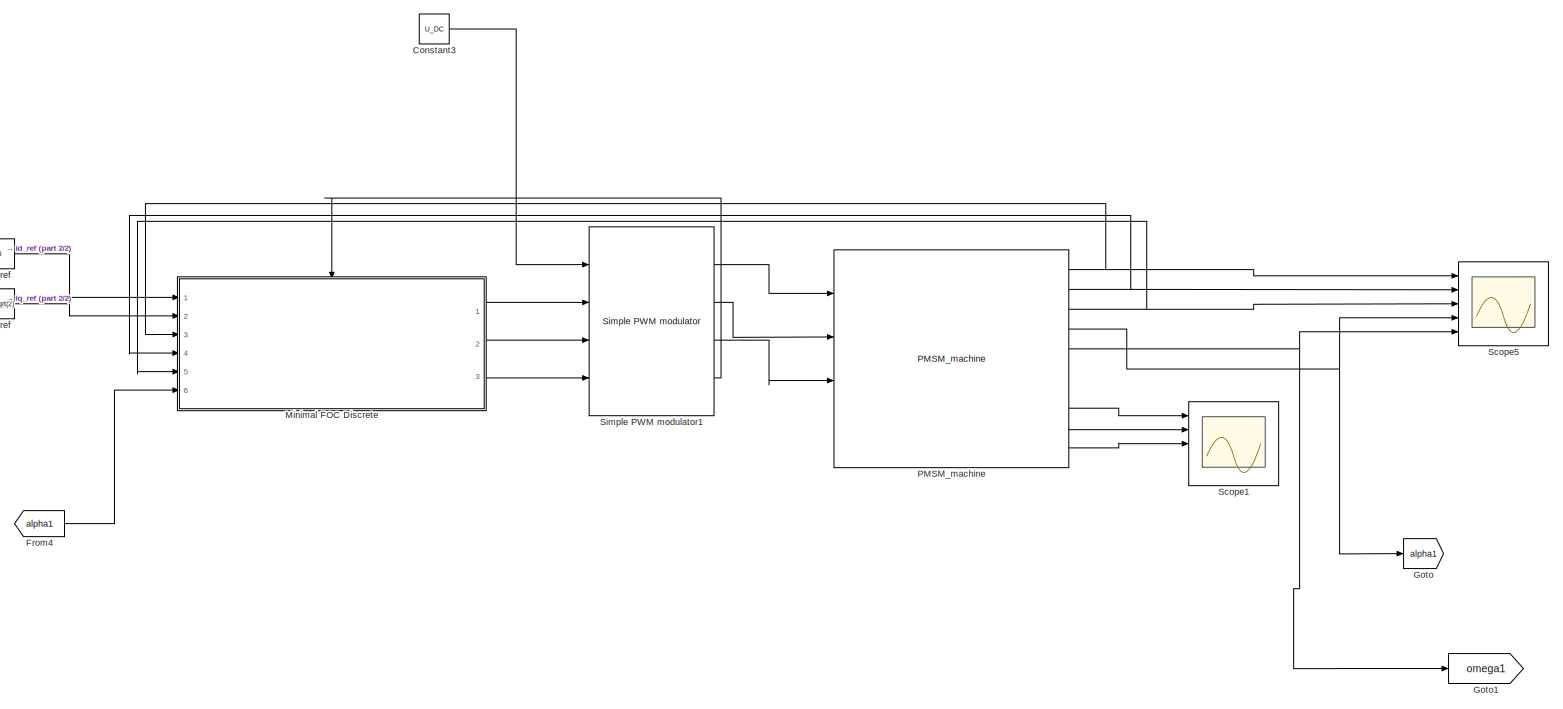
[diagram: root canvas - part 1/2, most of the canvas]
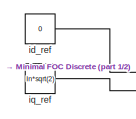
[diagram: root canvas - part 2/2, middle left region]
MODEL slx_70743bb73a25
KIND model
CONFIG AbsTol = auto
CONFIG EnableMultiTasking = off
CONFIG FixedStep = auto
CONFIG MaxStep = 1e-6
CONFIG MinStep = auto
CONFIG RelTol = 1e-3
CONFIG SampleTimeConstraint = Unconstrained
CONFIG Solver = VariableStepAuto
CONFIG SolverName = VariableStepAuto
CONFIG StartTime = 0.0
CONFIG StopTime = 1
BLOCK [Constant] Constant3
  Value = U_DC
BLOCK [From] From4
  GotoTag = alpha1
BLOCK [Goto] Goto
  GotoTag = alpha1
BLOCK [Goto] Goto1
  GotoTag = omega1
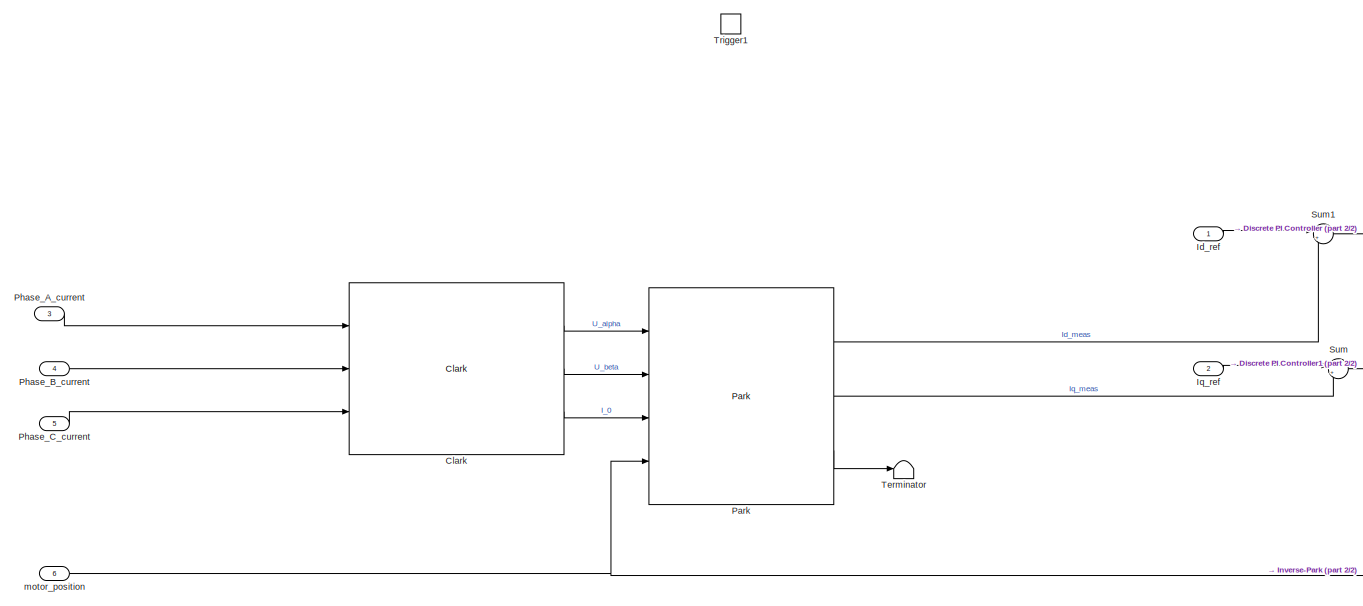
[diagram: Minimal FOC Discrete - part 1/2, left side, full height]
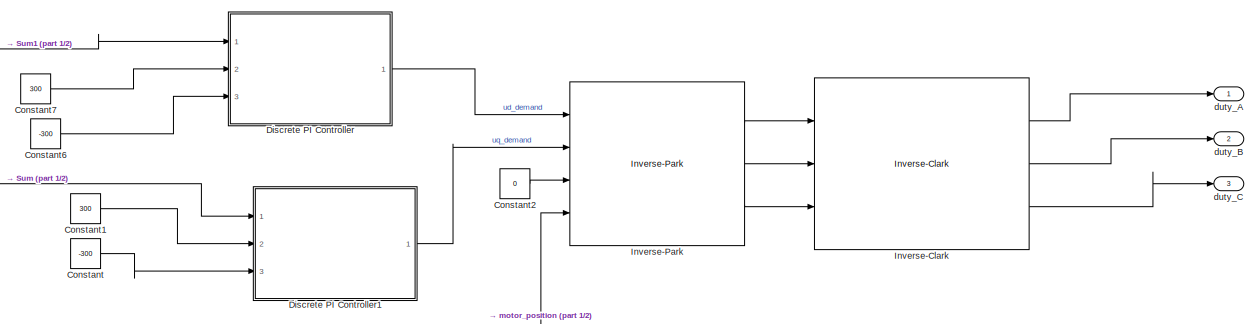
[diagram: Minimal FOC Discrete - part 2/2, middle right region]
BLOCK [SubSystem] Minimal FOC Discrete
  AncestorBlock = controllers/Minimal FOC Discrete
  Ports = [6, 3, 0, 1]
  RequestExecContextInheritance = off
BLOCK [Reference] Minimal FOC Discrete/Clark  REF=coordinate_transformations/Clark  (lib defined in slx_d357c885b4a9)
  Ports = [3, 3]
  SourceBlock = coordinate_transformations/Clark
  SourceType = SubSystem
BLOCK [Constant] Minimal FOC Discrete/Constant
  Value = -300
BLOCK [Constant] Minimal FOC Discrete/Constant1
  Value = 300
BLOCK [Constant] Minimal FOC Discrete/Constant2
  Value = 0
BLOCK [Constant] Minimal FOC Discrete/Constant6
  Value = -300
BLOCK [Constant] Minimal FOC Discrete/Constant7
  Value = 300
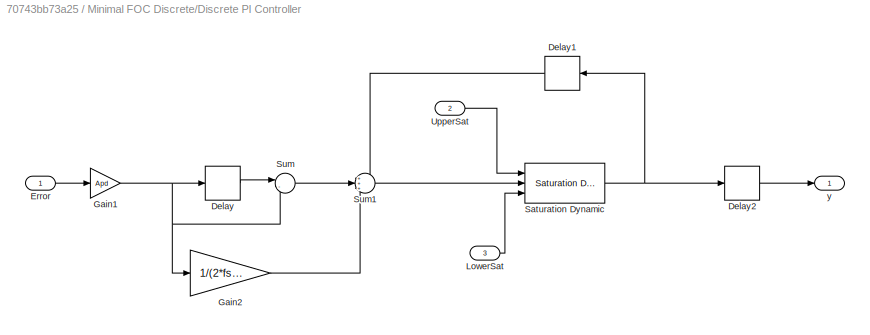
BLOCK [SubSystem] Minimal FOC Discrete/Discrete PI Controller
  AncestorBlock = controllers/Discrete PI Controller
  Ports = [3, 1]
  RequestExecContextInheritance = off
BLOCK [Delay] Minimal FOC Discrete/Discrete PI Controller/Delay
  DelayLength = 1
  InputPortMap = u0
  Ports = [1, 1]
BLOCK [Delay] Minimal FOC Discrete/Discrete PI Controller/Delay1
  DelayLength = 1
  InputPortMap = u0
  Ports = [1, 1]
BLOCK [Delay] Minimal FOC Discrete/Discrete PI Controller/Delay2
  DelayLength = 1
  InputPortMap = u0
  Ports = [1, 1]
BLOCK [Inport] Minimal FOC Discrete/Discrete PI Controller/Error
  IconDisplay = Port number
BLOCK [Gain] Minimal FOC Discrete/Discrete PI Controller/Gain1
  Gain = Apd
  OutDataTypeStr = Inherit: Inherit via internal rule
  ParamDataTypeStr = Inherit: Inherit via internal rule
  SaturateOnIntegerOverflow = off
BLOCK [Gain] Minimal FOC Discrete/Discrete PI Controller/Gain2
  Gain = 1/(2*fs*Tid)
  OutDataTypeStr = Inherit: Inherit via internal rule
  ParamDataTypeStr = Inherit: Inherit via internal rule
  SaturateOnIntegerOverflow = off
BLOCK [Inport] Minimal FOC Discrete/Discrete PI Controller/LowerSat
  IconDisplay = Port number
  Port = 3
BLOCK [Reference] Minimal FOC Discrete/Discrete PI Controller/Saturation Dynamic  REF=simulink/Discontinuities/Saturation
Dynamic
  Ports = [3, 1]
  SourceBlock = simulink/Discontinuities/Saturation\nDynamic
  SourceProductBaseCode = SL
  SourceProductName = Simulink
  SourceType = Saturation Dynamic
BLOCK [Sum] Minimal FOC Discrete/Discrete PI Controller/Sum
  IconShape = round
  InputSameDT = off
  Inputs = |-+
  OutDataTypeStr = Inherit: Inherit via internal rule
  Ports = [2, 1]
  SaturateOnIntegerOverflow = off
BLOCK [Sum] Minimal FOC Discrete/Discrete PI Controller/Sum1
  IconShape = round
  InputSameDT = off
  Inputs = +++
  OutDataTypeStr = Inherit: Inherit via internal rule
  Ports = [3, 1]
  SaturateOnIntegerOverflow = off
BLOCK [Inport] Minimal FOC Discrete/Discrete PI Controller/UpperSat
  IconDisplay = Port number
  Port = 2
BLOCK [Outport] Minimal FOC Discrete/Discrete PI Controller/y
  IconDisplay = Port number
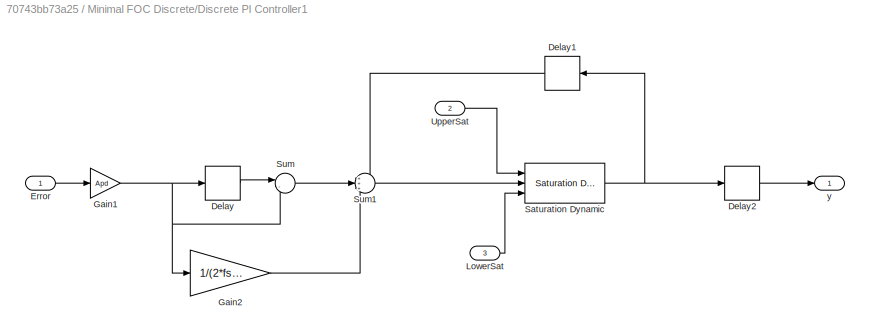
BLOCK [SubSystem] Minimal FOC Discrete/Discrete PI Controller1
  AncestorBlock = controllers/Discrete PI Controller
  Ports = [3, 1]
  RequestExecContextInheritance = off
BLOCK [Delay] Minimal FOC Discrete/Discrete PI Controller1/Delay
  DelayLength = 1
  InputPortMap = u0
  Ports = [1, 1]
BLOCK [Delay] Minimal FOC Discrete/Discrete PI Controller1/Delay1
  DelayLength = 1
  InputPortMap = u0
  Ports = [1, 1]
BLOCK [Delay] Minimal FOC Discrete/Discrete PI Controller1/Delay2
  DelayLength = 1
  InputPortMap = u0
  Ports = [1, 1]
BLOCK [Inport] Minimal FOC Discrete/Discrete PI Controller1/Error
  IconDisplay = Port number
BLOCK [Gain] Minimal FOC Discrete/Discrete PI Controller1/Gain1
  Gain = Apd
  OutDataTypeStr = Inherit: Inherit via internal rule
  ParamDataTypeStr = Inherit: Inherit via internal rule
  SaturateOnIntegerOverflow = off
BLOCK [Gain] Minimal FOC Discrete/Discrete PI Controller1/Gain2
  Gain = 1/(2*fs*Tid)
  OutDataTypeStr = Inherit: Inherit via internal rule
  ParamDataTypeStr = Inherit: Inherit via internal rule
  SaturateOnIntegerOverflow = off
BLOCK [Inport] Minimal FOC Discrete/Discrete PI Controller1/LowerSat
  IconDisplay = Port number
  Port = 3
BLOCK [Reference] Minimal FOC Discrete/Discrete PI Controller1/Saturation Dynamic  REF=simulink/Discontinuities/Saturation
Dynamic
  Ports = [3, 1]
  SourceBlock = simulink/Discontinuities/Saturation\nDynamic
  SourceProductBaseCode = SL
  SourceProductName = Simulink
  SourceType = Saturation Dynamic
BLOCK [Sum] Minimal FOC Discrete/Discrete PI Controller1/Sum
  IconShape = round
  InputSameDT = off
  Inputs = |-+
  OutDataTypeStr = Inherit: Inherit via internal rule
  Ports = [2, 1]
  SaturateOnIntegerOverflow = off
BLOCK [Sum] Minimal FOC Discrete/Discrete PI Controller1/Sum1
  IconShape = round
  InputSameDT = off
  Inputs = +++
  OutDataTypeStr = Inherit: Inherit via internal rule
  Ports = [3, 1]
  SaturateOnIntegerOverflow = off
BLOCK [Inport] Minimal FOC Discrete/Discrete PI Controller1/UpperSat
  IconDisplay = Port number
  Port = 2
BLOCK [Outport] Minimal FOC Discrete/Discrete PI Controller1/y
  IconDisplay = Port number
BLOCK [Inport] Minimal FOC Discrete/Id_ref
  IconDisplay = Port number
BLOCK [Reference] Minimal FOC Discrete/Inverse-Clark  REF=coordinate_transformations/Inverse-Clark  (lib defined in slx_d357c885b4a9)
  Ports = [3, 3]
  SourceBlock = coordinate_transformations/Inverse-Clark
  SourceType = SubSystem
BLOCK [Reference] Minimal FOC Discrete/Inverse-Park  REF=coordinate_transformations/Inverse-Park  (lib defined in slx_d357c885b4a9)
  Ports = [4, 3]
  SourceBlock = coordinate_transformations/Inverse-Park
  SourceType = SubSystem
BLOCK [Inport] Minimal FOC Discrete/Iq_ref
  IconDisplay = Port number
  Port = 2
BLOCK [Reference] Minimal FOC Discrete/Park  REF=coordinate_transformations/Park  (lib defined in slx_d357c885b4a9)
  Ports = [4, 3]
  SourceBlock = coordinate_transformations/Park
  SourceType = SubSystem
BLOCK [Inport] Minimal FOC Discrete/Phase_A_current
  IconDisplay = Port number
  Port = 3
BLOCK [Inport] Minimal FOC Discrete/Phase_B_current
  IconDisplay = Port number
  Port = 4
BLOCK [Inport] Minimal FOC Discrete/Phase_C_current
  IconDisplay = Port number
  Port = 5
BLOCK [Sum] Minimal FOC Discrete/Sum
  IconShape = round
  InputSameDT = off
  Inputs = |+-
  OutDataTypeStr = Inherit: Inherit via internal rule
  Ports = [2, 1]
  SaturateOnIntegerOverflow = off
BLOCK [Sum] Minimal FOC Discrete/Sum1
  IconShape = round
  InputSameDT = off
  Inputs = |+-
  OutDataTypeStr = Inherit: Inherit via internal rule
  Ports = [2, 1]
  SaturateOnIntegerOverflow = off
BLOCK [Terminator] Minimal FOC Discrete/Terminator
BLOCK [TriggerPort] Minimal FOC Discrete/Trigger1
  PortDimensions = 1
  Ports = []
  StatesWhenEnabling = held
  TriggerType = either
  VariantControl = Variant
BLOCK [Outport] Minimal FOC Discrete/duty_A
  IconDisplay = Port number
BLOCK [Outport] Minimal FOC Discrete/duty_B
  IconDisplay = Port number
  Port = 2
BLOCK [Outport] Minimal FOC Discrete/duty_C
  IconDisplay = Port number
  Port = 3
BLOCK [Inport] Minimal FOC Discrete/motor_position
  IconDisplay = Port number
  Port = 6
BLOCK [Reference] PMSM_machine  REF=PE_components/PMSM_machine
  Ports = [4, 10]
  SourceBlock = PE_components/PMSM_machine
  SourceType = SubSystem
BLOCK [Scope] Scope1
  Floating = off
  NumInputPorts = 5
  Ports = [5]
  ScopeSpecificationString = Simulink.scopes.TimeScopeBlockCfg('CurrentConfiguration', extmgr.ConfigurationSet(extmgr.Configuration('Core','General UI',true),extmgr.Configuration('Core','Source UI',true),extmgr.Configuration('Sources','WiredSimulink',true,'DataLoggingVariableName','ScopeData1'),extmgr.Configuration('Visuals','Time Domain',true,'SerializedDisplays',{struct('MinYLimReal','-280.47194','MaxYLimReal','279.479','YL...<+2309ch>
BLOCK [Scope] Scope5
  Floating = off
  NumInputPorts = 5
  Ports = [5]
  ScopeSpecificationString = Simulink.scopes.TimeScopeBlockCfg('CurrentConfiguration', extmgr.ConfigurationSet(extmgr.Configuration('Core','General UI',true),extmgr.Configuration('Core','Source UI',true),extmgr.Configuration('Sources','WiredSimulink',true,'DataLoggingVariableName','ScopeData5'),extmgr.Configuration('Visuals','Time Domain',true,'SerializedDisplays',{struct('MinYLimReal','-256.28408','MaxYLimReal','405.88193','...<+2352ch>
BLOCK [Reference] Simple PWM modulator1  REF=controllers/Simple PWM modulator  (lib defined in mdl_0f1bdf7b97cc, mdl_b570f3ba1b2b, +8 more)
  Ports = [4, 4]
  SourceBlock = controllers/Simple PWM modulator
  SourceType = SubSystem
BLOCK [Constant] id_ref
  Value = 0
BLOCK [Constant] iq_ref
  Value = In*sqrt(2)
LINE Constant3:1 -> Simple PWM modulator1:1
LINE From4:1 -> Minimal FOC Discrete:6
LINE Minimal FOC Discrete:1 -> Simple PWM modulator1:2
LINE Minimal FOC Discrete:2 -> Simple PWM modulator1:3
LINE Minimal FOC Discrete:3 -> Simple PWM modulator1:4
NET PMSM_machine:1 -> Minimal FOC Discrete:3, Scope5:1
LINE PMSM_machine:10 -> Scope1:3
NET PMSM_machine:2 -> Minimal FOC Discrete:4, Scope5:2
NET PMSM_machine:3 -> Minimal FOC Discrete:5, Scope5:3
NET PMSM_machine:4 -> Goto:1, Scope5:4
NET PMSM_machine:5 -> Goto1:1, Scope5:5
LINE PMSM_machine:8 -> Scope1:1
LINE PMSM_machine:9 -> Scope1:2
LINE Simple PWM modulator1:1 -> PMSM_machine:1
LINE Simple PWM modulator1:2 -> PMSM_machine:2
LINE Simple PWM modulator1:3 -> PMSM_machine:3
LINE Simple PWM modulator1:4 -> Minimal FOC Discrete:trigger
LINE id_ref:1 -> Minimal FOC Discrete:1
LINE iq_ref:1 -> Minimal FOC Discrete:2
note: NET lines group one-source signal fan-out (src -> all destinations, sorted); 1:1 wires keep LINE
